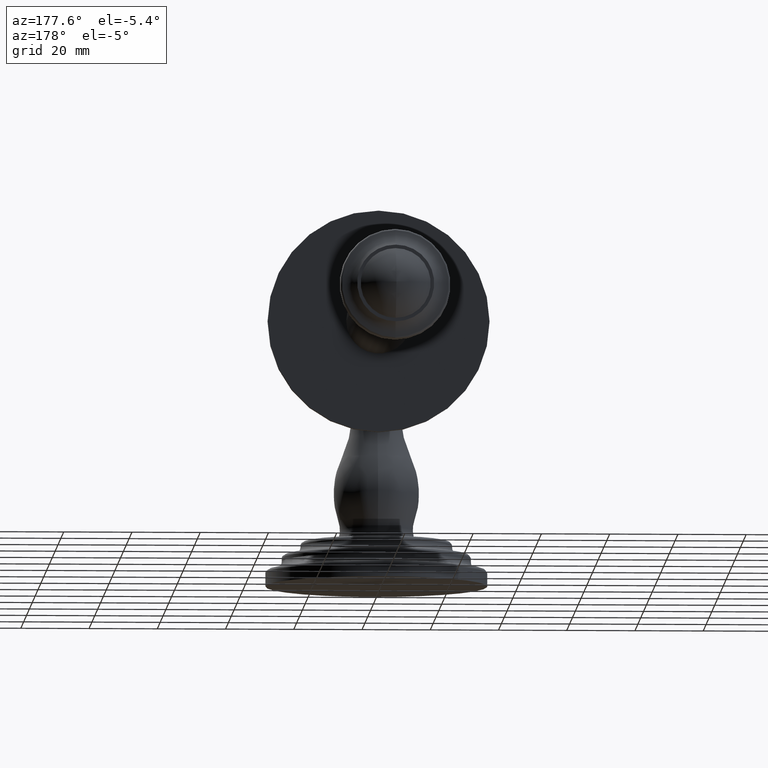
[diagram: clean part render]
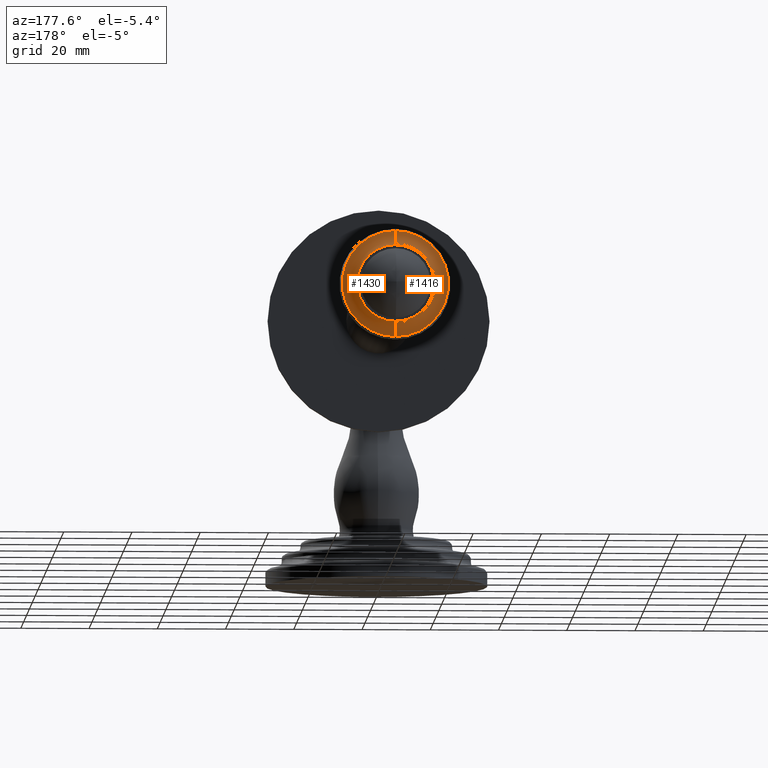
[diagram: same view with one multi-face feature highlighted, each face labeled with its STEP entity id]
A machine part, auxiliary view. The highlighted faces form ONE feature: a constant-radius fillet chain: 2 tangent blend faces with common blend radius 5.715 mm. The faces share edges in the B-rep.
Their STEP definitions:
[1] entity #1430 (Torus):
#471=CARTESIAN_POINT('',(0.E0,5.478E0,2.393E0));
#472=DIRECTION('',(-1.E0,0.E0,0.E0));
#473=DIRECTION('',(0.E0,-9.996861700679E-1,2.505117512051E-2));
#474=AXIS2_PLACEMENT_3D('',#471,#472,#473);
#476=CARTESIAN_POINT('',(0.E0,5.478E0,3.631E0));
#477=DIRECTION('',(1.E0,0.E0,0.E0));
#478=DIRECTION('',(0.E0,-9.996861700679E-1,-2.505117512051E-2));
#479=AXIS2_PLACEMENT_3D('',#476,#477,#478);
#481=CARTESIAN_POINT('',(0.E0,5.253070611735E0,3.012E0));
#482=DIRECTION('',(0.E0,1.E0,0.E0));
#483=DIRECTION('',(0.E0,0.E0,1.E0));
#484=AXIS2_PLACEMENT_3D('',#481,#482,#483);
#506=CARTESIAN_POINT('',(0.E0,5.336218269811E0,3.012E0));
#507=DIRECTION('',(0.E0,-1.E0,0.E0));
#508=DIRECTION('',(0.E0,0.E0,-1.E0));
#509=AXIS2_PLACEMENT_3D('',#506,#507,#508);
#659=CARTESIAN_POINT('',(0.E0,5.336218269811E0,2.567708159468E0));
#660=CARTESIAN_POINT('',(0.E0,5.336218269811E0,3.456291840532E0));
#661=VERTEX_POINT('',#659);
#662=VERTEX_POINT('',#660);
#663=CARTESIAN_POINT('',(0.E0,5.253070611735E0,2.398636514402E0));
#664=CARTESIAN_POINT('',(0.E0,5.253070611735E0,3.625363485598E0));
#665=VERTEX_POINT('',#663);
#666=VERTEX_POINT('',#664);
#1417=CARTESIAN_POINT('',(0.E0,5.478E0,3.012E0));
#1418=DIRECTION('',(0.E0,-1.E0,0.E0));
#1419=DIRECTION('',(0.E0,0.E0,1.E0));
#1420=AXIS2_PLACEMENT_3D('',#1417,#1418,#1419);
#1421=TOROIDAL_SURFACE('',#1420,6.19E-1,2.25E-1);
#1423=ORIENTED_EDGE('',*,*,#1422,.F.);
#1424=ORIENTED_EDGE('',*,*,#1412,.T.);
#1426=ORIENTED_EDGE('',*,*,#1425,.F.);
#1427=ORIENTED_EDGE('',*,*,#1408,.F.);
#1428=EDGE_LOOP('',(#1423,#1424,#1426,#1427));
#1429=FACE_OUTER_BOUND('',#1428,.F.);
#1430=ADVANCED_FACE('',(#1429),#1421,.F.);
#475=CIRCLE('',#474,2.25E-1);
#480=CIRCLE('',#479,2.25E-1);
#485=CIRCLE('',#484,6.133634855979E-1);
#510=CIRCLE('',#509,4.442918405322E-1);
#1408=EDGE_CURVE('',#665,#661,#475,.T.);
#1412=EDGE_CURVE('',#666,#662,#480,.T.);
#1422=EDGE_CURVE('',#666,#665,#485,.T.);
#1425=EDGE_CURVE('',#661,#662,#510,.T.);
[2] entity #1416 (Torus):
#466=CARTESIAN_POINT('',(0.E0,5.253070611735E0,3.012E0));
#467=DIRECTION('',(0.E0,1.E0,0.E0));
#468=DIRECTION('',(0.E0,0.E0,-1.E0));
#469=AXIS2_PLACEMENT_3D('',#466,#467,#468);
#471=CARTESIAN_POINT('',(0.E0,5.478E0,2.393E0));
#472=DIRECTION('',(-1.E0,0.E0,0.E0));
#473=DIRECTION('',(0.E0,-9.996861700679E-1,2.505117512051E-2));
#474=AXIS2_PLACEMENT_3D('',#471,#472,#473);
#476=CARTESIAN_POINT('',(0.E0,5.478E0,3.631E0));
#477=DIRECTION('',(1.E0,0.E0,0.E0));
#478=DIRECTION('',(0.E0,-9.996861700679E-1,-2.505117512051E-2));
#479=AXIS2_PLACEMENT_3D('',#476,#477,#478);
#501=CARTESIAN_POINT('',(0.E0,5.336218269811E0,3.012E0));
#502=DIRECTION('',(0.E0,1.E0,0.E0));
#503=DIRECTION('',(0.E0,0.E0,-1.E0));
#504=AXIS2_PLACEMENT_3D('',#501,#502,#503);
#659=CARTESIAN_POINT('',(0.E0,5.336218269811E0,2.567708159468E0));
#660=CARTESIAN_POINT('',(0.E0,5.336218269811E0,3.456291840532E0));
#661=VERTEX_POINT('',#659);
#662=VERTEX_POINT('',#660);
#663=CARTESIAN_POINT('',(0.E0,5.253070611735E0,2.398636514402E0));
#664=CARTESIAN_POINT('',(0.E0,5.253070611735E0,3.625363485598E0));
#665=VERTEX_POINT('',#663);
#666=VERTEX_POINT('',#664);
#1402=CARTESIAN_POINT('',(0.E0,5.478E0,3.012E0));
#1403=DIRECTION('',(0.E0,-1.E0,0.E0));
#1404=DIRECTION('',(0.E0,0.E0,1.E0));
#1405=AXIS2_PLACEMENT_3D('',#1402,#1403,#1404);
#1406=TOROIDAL_SURFACE('',#1405,6.19E-1,2.25E-1);
#1407=ORIENTED_EDGE('',*,*,#1392,.F.);
#1409=ORIENTED_EDGE('',*,*,#1408,.T.);
#1411=ORIENTED_EDGE('',*,*,#1410,.T.);
#1413=ORIENTED_EDGE('',*,*,#1412,.F.);
#1414=EDGE_LOOP('',(#1407,#1409,#1411,#1413));
#1415=FACE_OUTER_BOUND('',#1414,.F.);
#1416=ADVANCED_FACE('',(#1415),#1406,.F.);
#470=CIRCLE('',#469,6.133634855979E-1);
#475=CIRCLE('',#474,2.25E-1);
#480=CIRCLE('',#479,2.25E-1);
#505=CIRCLE('',#504,4.442918405322E-1);
#1392=EDGE_CURVE('',#665,#666,#470,.T.);
#1408=EDGE_CURVE('',#665,#661,#475,.T.);
#1410=EDGE_CURVE('',#661,#662,#505,.T.);
#1412=EDGE_CURVE('',#666,#662,#480,.T.);